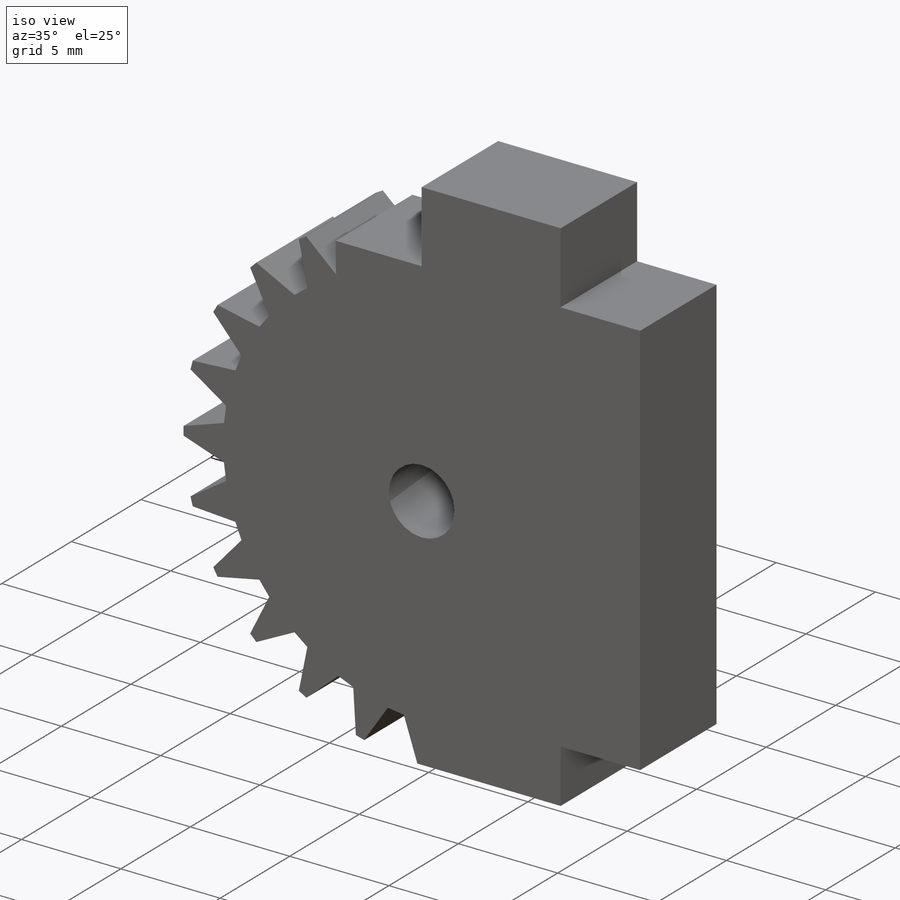
[diagram: iso view]
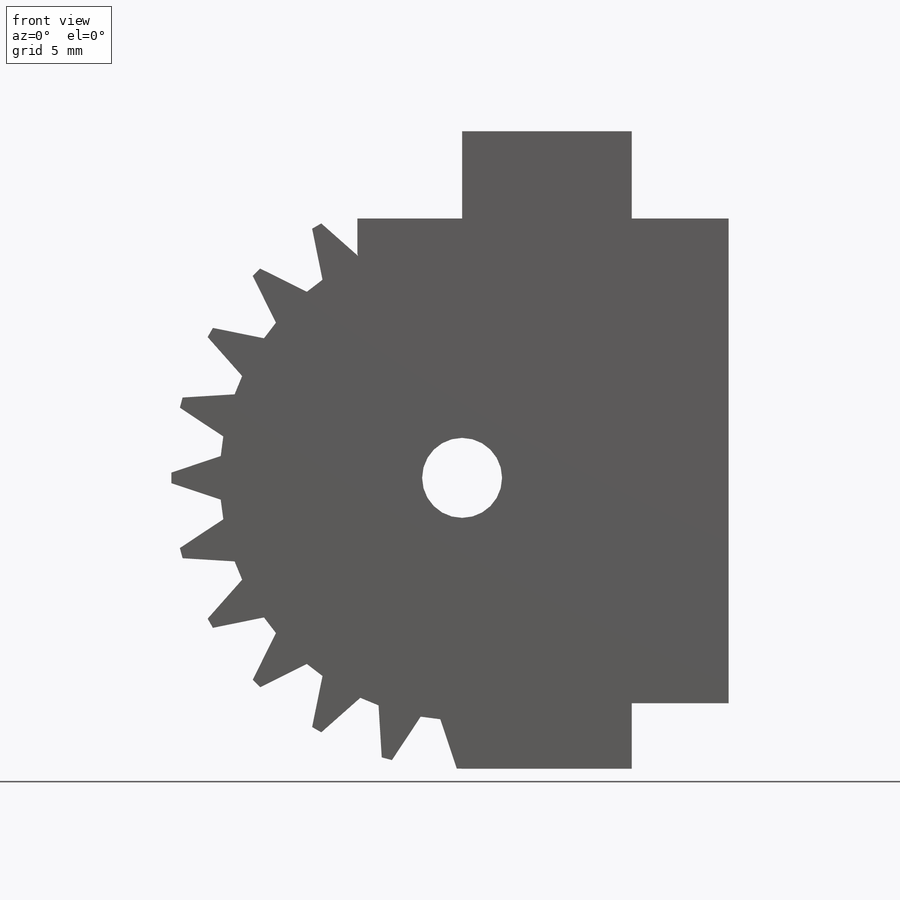
[diagram: front view]
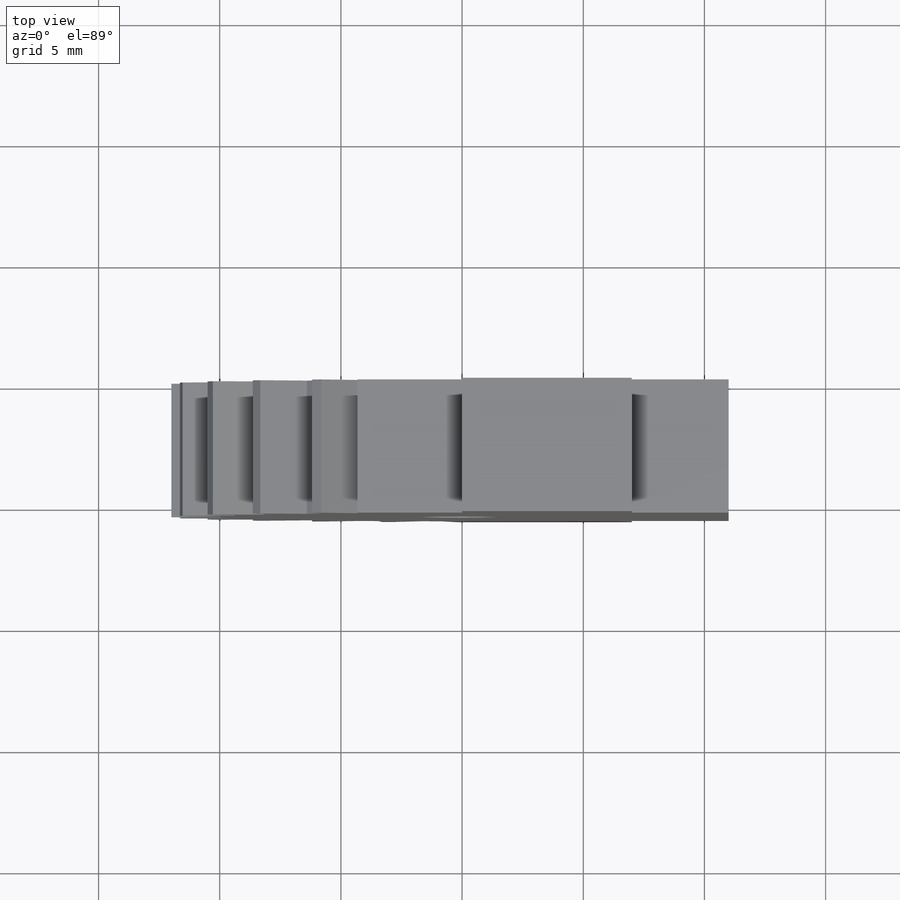
[diagram: top view]
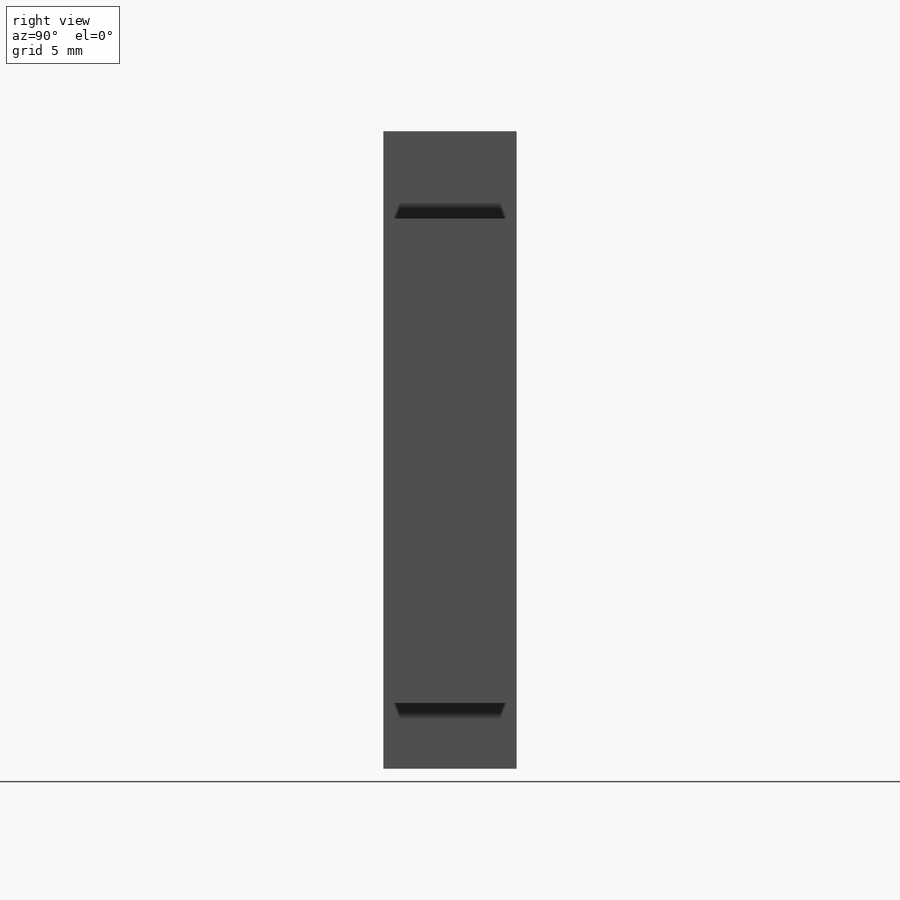
[diagram: right view]
SOLIDWORKS PART (.sldprt)
format: sldprt  version: not decoded by parser v0  size: 382,976 bytes
history: native  units: mm
features: sketch x7, extrude x3, cut_extrude x3, material x1, pattern_circular x1 (+13 scaffold rows collapsed)
feature tree (28):
  scaffold x13  (default folders/planes/origin — collapsed)
  material  "Material <not specified>"
  sketch  "Sketch1"  dims[D1=20.0mm]
  extrude  "Boss-Extrude1"  Depth=5.4mm
  sketch  "Sketch2"  dims[c1.D1=20.0mm c1.D2=25.3mm c1.D5=25.3mm c2.D2=20.0mm c2.D1=~99.597819mm c3.D2=126.48mm c3.D3=~28.332756mm c3.D4=~28.332756mm c3.D5=~17.903284mm c4.D3=~2.837117mm c4.D4=1.8mm]
  extrude  "Boss-Extrude2"  Depth=5.4mm
  pattern_circular  "CirPattern1"  Count=24 Angle=15deg
  sketch  "Sketch3"  dims[D1=24.0mm D2=25.3mm]
  cut_extrude  "Cut-Extrude1"  Depth=6mm
  sketch  "Sketch4"  dims[c1.D2=120.0mm c1.D1=12.0mm c2.D1=120.0mm c2.D3=120.0mm c2.D2=12.0mm c3.D3=12.0mm c3.D2=10.0mm c4.D3=~2.149627mm c4.D1=~3.826834mm c5.D1=22.5deg]
  cut_extrude  "Cut-Extrude2"  Depth=6mm
  sketch  "Sketch5"  dims[D1=2.0mm]
  cut_extrude  "Cut-Extrude3"  Depth=6mm
  sketch  "Sketch6"  dims[c1.D1=50.0mm c1.D2=20.0mm c2.D1=3.0mm c2.D2=8.0mm c2.D6=~60.892958mm c2.D16=8.0mm c2.D17=3.0mm c2.D3=30.0mm c2.D4=30.0mm c3.D2=15.0mm c3.D3=17.0mm c3.D4=8.1mm c3.D5=8.1mm c4.D4=16.0mm c4.D5=4.0mm c4.D6=5.0mm c4.D7=3.0mm c4.D2=5.0mm c4.D3=13.0mm c5.D6=18.0mm c5.D8=3.0mm c5.D9=1.0mm c5.D2=~20.281544mm c5.D4=~2.812121mm c5.D7=7.0mm c5.D1=7.0mm c6.D2=3.0mm c6.D3=4.0mm c6.D4=20.0mm c6.D7=10.0mm c6.D9=~6.812121mm c6.D10=~2.718456mm c6.D6=~13.164391mm c7.D9=~1.14114mm c7.D10=~2.718456mm c7.D6=~2.239972mm c8.D9=~1.380382mm c8.D10=~11.953048mm c8.D6=~2.201287mm c9.D9=~15.004467mm c9.D10=~2.239972mm c9.D11=~1.593927mm c9.D12=~0.436176mm c9.D6=~3.883925mm c10.D9=~14.373258mm c10.D11=20.0mm c10.D13=4.0mm c10.D14=3.0mm c10.D15=7.0mm c10.D18=5.0mm c10.D4=20.0mm c10.D2=3.0mm c10.D3=~7.254683mm c11.D2=7.0mm c11.D3=3.0mm c11.D5=4.0mm c11.D7=~11.404494mm c11.D8=~14.118574mm c11.D9=3.0mm c11.D11=4.0mm c12.D8=1.5mm c12.D6=1.5mm c13.D8=4.0mm c13.D2=2.9mm c13.D3=~8.156898mm c13.D6=7.0mm c13.D7=3.8mm c14.D8=7.0mm c14.D9=4.32mm]
  extrude  "Boss-Extrude3"  Depth=5.4mm
  sketch  "Sketch7"
decode coverage: 13 of 14 modeling features carry decoded parameters
note: ~ marks probable driven/reference dimensions
note: suppression state not decoded; provenance and decode notes live in map.json
